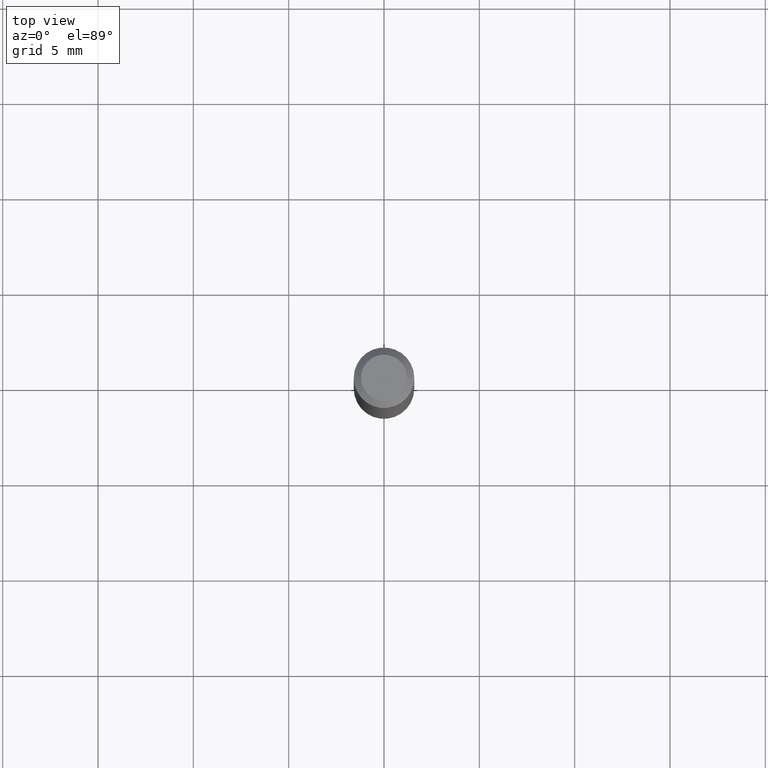
[diagram: clean part render]
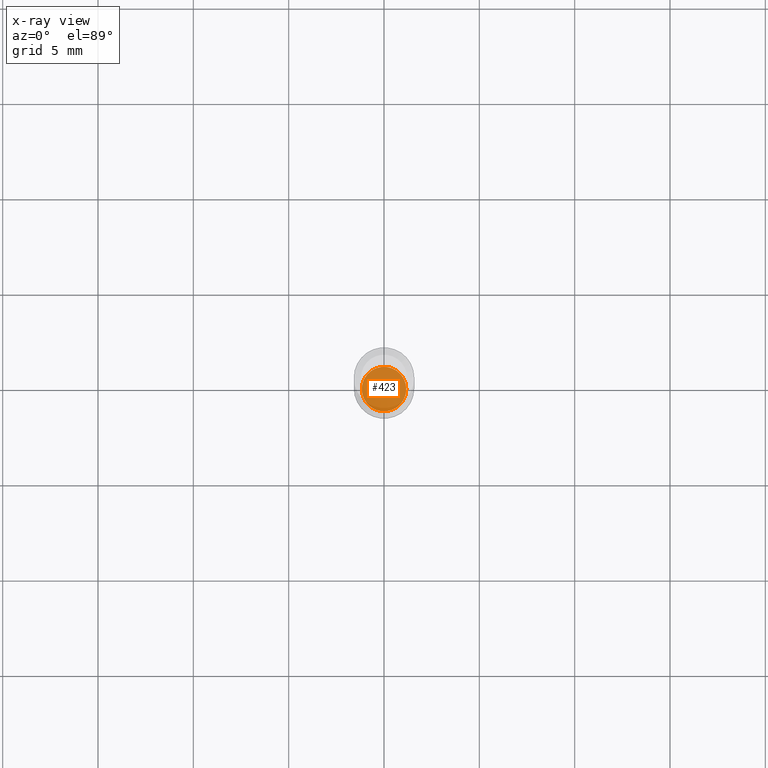
[diagram: x-ray — body ghosted, one internal face saturated and labeled with its STEP entity id]
A machine part, top view, then the same camera in x-ray: the body is ghosted and one INTERNAL B-rep face — a face not visible from any outside direction — is saturated and labeled: STEP entity #423.
In plain terms, the highlighted planar face has unit normal (-0, 0, 1).
Its self-contained STEP definition (entity closure, byte-faithful):
#28 = DIRECTION ( 'NONE',  ( 1.000000000000000000, -6.982962677686265922E-15, 4.876176775795935793E-29 ) ) ;
#65 = ORIENTED_EDGE ( 'NONE', *, *, #454, .F. ) ;
#66 = CARTESIAN_POINT ( 'NONE',  ( 3.327060310814878865E-29, -4.750160361496100537E-15, -1.360500000000000043 ) ) ;
#68 = CIRCLE ( 'NONE', #377, 0.04599999999999999922 ) ;
#80 = AXIS2_PLACEMENT_3D ( 'NONE', #430, #456, #350 ) ;
#81 = VERTEX_POINT ( 'NONE', #273 ) ;
#84 = ORIENTED_EDGE ( 'NONE', *, *, #435, .F. ) ;
#112 = EDGE_LOOP ( 'NONE', ( #65, #84 ) ) ;
#168 = CIRCLE ( 'NONE', #80, 0.04599999999999999922 ) ;
#191 = CARTESIAN_POINT ( 'NONE',  ( 3.327060310814878865E-29, -4.750160361496100537E-15, -1.360500000000000043 ) ) ;
#193 = DIRECTION ( 'NONE',  ( -2.438088387897960049E-29, 3.491481338843145188E-15, 1.000000000000000000 ) ) ;
#204 = DIRECTION ( 'NONE',  ( 1.000000000000000000, -6.982962677686269866E-15, 0.000000000000000000 ) ) ;
#248 = AXIS2_PLACEMENT_3D ( 'NONE', #66, #193, #28 ) ;
#259 = VERTEX_POINT ( 'NONE', #263 ) ;
#263 = CARTESIAN_POINT ( 'NONE',  ( -0.04599999999999999922, -4.420661475872342960E-15, -1.360500000000000043 ) ) ;
#273 = CARTESIAN_POINT ( 'NONE',  ( 0.04599999999999999922, -5.071376644669669027E-15, -1.360500000000000043 ) ) ;
#280 = DIRECTION ( 'NONE',  ( -2.445468806185136597E-29, 3.491481338843145583E-15, 1.000000000000000000 ) ) ;
#350 = DIRECTION ( 'NONE',  ( 1.000000000000000000, -6.982962677686269866E-15, 0.000000000000000000 ) ) ;
#377 = AXIS2_PLACEMENT_3D ( 'NONE', #191, #280, #204 ) ;
#384 = PLANE ( 'NONE',  #248 ) ;
#423 = ADVANCED_FACE ( 'NONE', ( #466 ), #384, .F. ) ;
#430 = CARTESIAN_POINT ( 'NONE',  ( 3.327060310814878865E-29, -4.750160361496100537E-15, -1.360500000000000043 ) ) ;
#435 = EDGE_CURVE ( 'NONE', #259, #81, #68, .T. ) ;
#454 = EDGE_CURVE ( 'NONE', #81, #259, #168, .T. ) ;
#456 = DIRECTION ( 'NONE',  ( -2.445468806185136597E-29, 3.491481338843145583E-15, 1.000000000000000000 ) ) ;
#466 = FACE_OUTER_BOUND ( 'NONE', #112, .T. ) ;